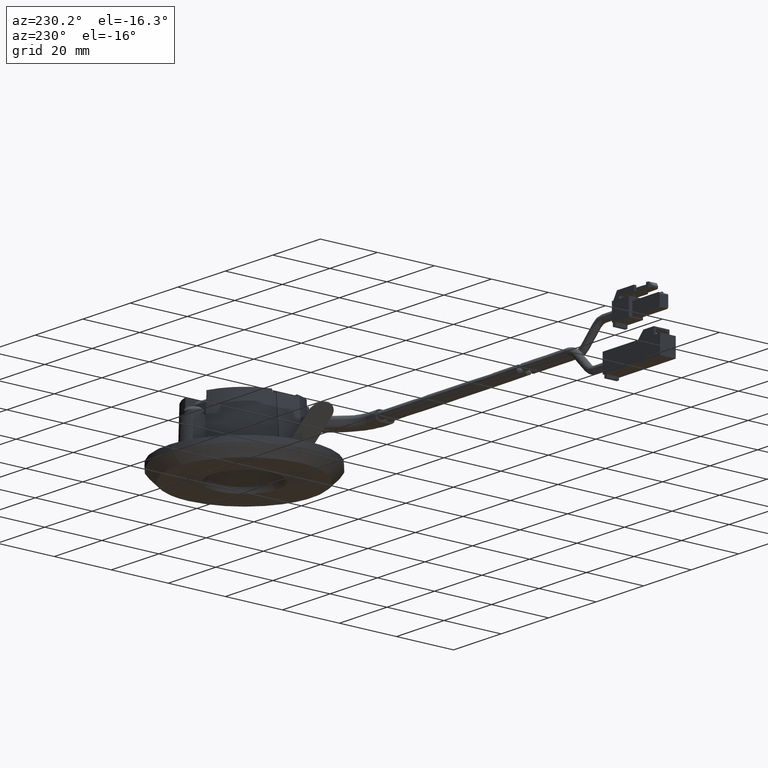
[diagram: clean part render]
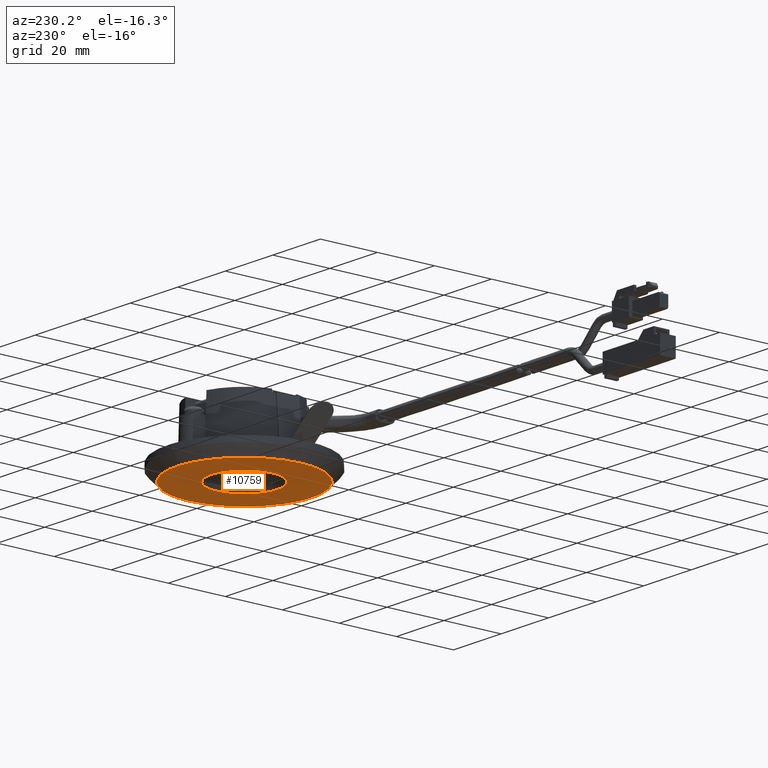
[diagram: same view with one face highlighted and labeled with its STEP entity id]
A machine part, auxiliary view. The second image highlights one B-rep face of the part: STEP entity #10759.
In plain terms, the highlighted face is a freeform B-spline surface patch.
Its self-contained STEP definition (entity closure, byte-faithful):
#10579=CARTESIAN_POINT('',(-0.702058204869649,11.478550181869860,-2.867680E-011));
#10580=VERTEX_POINT('',#10579);
#10586=CARTESIAN_POINT('',(11.500000000002890,0.0,0.0));
#10587=VERTEX_POINT('',#10586);
#10588=CARTESIAN_POINT('',(-0.702058204869649,11.478550181869862,-2.867680E-011));
#10589=CARTESIAN_POINT('',(-0.351356778044248,11.500000000031255,-2.826469E-011));
#10590=CARTESIAN_POINT('',(-1.546591E-012,11.500000000030809,-2.782662E-011));
#10591=CARTESIAN_POINT('',(11.500000000002062,11.500000000016341,-1.348822E-011));
#10592=CARTESIAN_POINT('',(11.500000000002890,0.0,0.0));
#10600=(BOUNDED_CURVE()B_SPLINE_CURVE(2,(#10588,#10589,#10590,#10591,#10592),.UNSPECIFIED.,.F.,.U.)B_SPLINE_CURVE_WITH_KNOTS((3,2,3),(0.239332962238706,0.250000000000000,0.500000000000000),.UNSPECIFIED.)CURVE()GEOMETRIC_REPRESENTATION_ITEM()RATIONAL_B_SPLINE_CURVE((0.976072041666210,0.987502787899560,1.0,0.707106781186548,1.0))REPRESENTATION_ITEM(''));
#10601=EDGE_CURVE('',#10580,#10587,#10600,.T.);
#10603=CARTESIAN_POINT('',(0.702058204869991,-11.478550181869860,-2.867702E-011));
#10604=VERTEX_POINT('',#10603);
#10605=CARTESIAN_POINT('',(11.500000000002890,0.0,0.0));
#10606=CARTESIAN_POINT('',(11.500000000003778,-10.818119769227604,-1.419286E-011));
#10607=CARTESIAN_POINT('',(0.702058204869991,-11.478550181869862,-2.867702E-011));
#10615=(BOUNDED_CURVE()B_SPLINE_CURVE(2,(#10605,#10606,#10607),.UNSPECIFIED.,.F.,.U.)B_SPLINE_CURVE_WITH_KNOTS((3,3),(0.500000000000000,0.739332962238706),.UNSPECIFIED.)CURVE()GEOMETRIC_REPRESENTATION_ITEM()RATIONAL_B_SPLINE_CURVE((1.0,0.719603993286988,0.976072041666210))REPRESENTATION_ITEM(''));
#10616=EDGE_CURVE('',#10587,#10604,#10615,.T.);
#10648=CARTESIAN_POINT('',(-11.500000000002551,0.0,3.298065E-013));
#10649=VERTEX_POINT('',#10648);
#10650=CARTESIAN_POINT('',(0.702058204869991,-11.478550181869862,-2.867702E-011));
#10651=CARTESIAN_POINT('',(0.351356778044591,-11.500000000031255,-2.825957E-011));
#10652=CARTESIAN_POINT('',(1.890776E-012,-11.500000000030809,-2.781646E-011));
#10653=CARTESIAN_POINT('',(-11.500000000001718,-11.500000000016341,-1.331336E-011));
#10654=CARTESIAN_POINT('',(-11.500000000002551,0.0,3.298065E-013));
#10662=(BOUNDED_CURVE()B_SPLINE_CURVE(2,(#10650,#10651,#10652,#10653,#10654),.UNSPECIFIED.,.F.,.U.)B_SPLINE_CURVE_WITH_KNOTS((3,2,3),(0.739332962238706,0.750000000000000,1.0),.UNSPECIFIED.)CURVE()GEOMETRIC_REPRESENTATION_ITEM()RATIONAL_B_SPLINE_CURVE((0.976072041666210,0.987502787899560,1.0,0.707106781186548,1.0))REPRESENTATION_ITEM(''));
#10663=EDGE_CURVE('',#10604,#10649,#10662,.T.);
#10665=CARTESIAN_POINT('',(-11.500000000002551,0.0,3.298065E-013));
#10666=CARTESIAN_POINT('',(-11.500000000003435,10.818119769227604,-1.417350E-011));
#10667=CARTESIAN_POINT('',(-0.702058204869649,11.478550181869862,-2.867680E-011));
#10675=(BOUNDED_CURVE()B_SPLINE_CURVE(2,(#10665,#10666,#10667),.UNSPECIFIED.,.F.,.U.)B_SPLINE_CURVE_WITH_KNOTS((3,3),(0.0,0.239332962238706),.UNSPECIFIED.)CURVE()GEOMETRIC_REPRESENTATION_ITEM()RATIONAL_B_SPLINE_CURVE((1.0,0.719603993286988,0.976072041666210))REPRESENTATION_ITEM(''));
#10676=EDGE_CURVE('',#10649,#10580,#10675,.T.);
#10682=CARTESIAN_POINT('',(-26.067629908131359,-26.060396084585339,3.922769E-013));
#10683=CARTESIAN_POINT('',(26.067631179498768,-26.060396084585339,3.922769E-013));
#10684=CARTESIAN_POINT('',(-26.067629908131359,26.060396932163389,3.922769E-013));
#10685=CARTESIAN_POINT('',(26.067631179498768,26.060396932163389,3.922769E-013));
#10686=B_SPLINE_SURFACE_WITH_KNOTS('',1,1,((#10682,#10684),(#10683,#10685)),.UNSPECIFIED.,.F.,.F.,.U.,(2,2),(2,2),(0.0,52.135261087630127),(0.0,52.120793016748742),.UNSPECIFIED.);
#10687=CARTESIAN_POINT('',(-23.700000000001580,0.0,4.547474E-013));
#10688=VERTEX_POINT('',#10687);
#10689=CARTESIAN_POINT('',(-1.859480568842503,23.626940809481599,1.243042E-011));
#10690=VERTEX_POINT('',#10689);
#10691=CARTESIAN_POINT('',(-23.700000000001580,0.0,4.547474E-013));
#10692=CARTESIAN_POINT('',(-23.700000000002046,21.908054652221818,6.442583E-012));
#10693=CARTESIAN_POINT('',(-1.859480568842504,23.626940809481599,1.243042E-011));
#10701=(BOUNDED_CURVE()B_SPLINE_CURVE(2,(#10691,#10692,#10693),.UNSPECIFIED.,.F.,.U.)B_SPLINE_CURVE_WITH_KNOTS((3,3),(0.0,0.236331300632102),.UNSPECIFIED.)CURVE()GEOMETRIC_REPRESENTATION_ITEM()RATIONAL_B_SPLINE_CURVE((1.0,0.723120658605976,0.969723356170427))REPRESENTATION_ITEM(''));
#10702=EDGE_CURVE('',#10688,#10690,#10701,.T.);
#10703=ORIENTED_EDGE('',*,*,#10702,.T.);
#10704=CARTESIAN_POINT('',(23.700000000001921,0.0,0.0));
#10705=VERTEX_POINT('',#10704);
#10706=CARTESIAN_POINT('',(-1.859480568842504,23.626940809481599,1.243042E-011));
#10707=CARTESIAN_POINT('',(-0.931175536128641,23.700000000013471,1.220469E-011));
#10708=CARTESIAN_POINT('',(-7.353469E-013,23.700000000013230,1.196049E-011));
#10709=CARTESIAN_POINT('',(23.700000000001474,23.700000000007257,5.745280E-012));
#10710=CARTESIAN_POINT('',(23.700000000001921,0.0,0.0));
#10718=(BOUNDED_CURVE()B_SPLINE_CURVE(2,(#10706,#10707,#10708,#10709,#10710),.UNSPECIFIED.,.F.,.U.)B_SPLINE_CURVE_WITH_KNOTS((3,2,3),(0.236331300632102,0.250000000000000,0.500000000000000),.UNSPECIFIED.)CURVE()GEOMETRIC_REPRESENTATION_ITEM()RATIONAL_B_SPLINE_CURVE((0.969723356170427,0.983986122580572,1.0,0.707106781186548,1.0))REPRESENTATION_ITEM(''));
#10719=EDGE_CURVE('',#10690,#10705,#10718,.T.);
#10720=ORIENTED_EDGE('',*,*,#10719,.T.);
#10721=CARTESIAN_POINT('',(1.859480568842842,-23.626940809481599,1.242972E-011));
#10722=VERTEX_POINT('',#10721);
#10723=CARTESIAN_POINT('',(23.700000000001921,0.0,0.0));
#10724=CARTESIAN_POINT('',(23.700000000002394,-21.908054652221836,6.408550E-012));
#10725=CARTESIAN_POINT('',(1.859480568842842,-23.626940809481596,1.242972E-011));
#10733=(BOUNDED_CURVE()B_SPLINE_CURVE(2,(#10723,#10724,#10725),.UNSPECIFIED.,.F.,.U.)B_SPLINE_CURVE_WITH_KNOTS((3,3),(0.500000000000000,0.736331300632102),.UNSPECIFIED.)CURVE()GEOMETRIC_REPRESENTATION_ITEM()RATIONAL_B_SPLINE_CURVE((1.0,0.723120658605976,0.969723356170427))REPRESENTATION_ITEM(''));
#10734=EDGE_CURVE('',#10705,#10722,#10733,.T.);
#10735=ORIENTED_EDGE('',*,*,#10734,.T.);
#10736=CARTESIAN_POINT('',(1.859480568842842,-23.626940809481596,1.242972E-011));
#10737=CARTESIAN_POINT('',(0.931175536128983,-23.700000000013468,1.221363E-011));
#10738=CARTESIAN_POINT('',(1.080894E-012,-23.700000000013230,1.197835E-011));
#10739=CARTESIAN_POINT('',(-23.700000000001136,-23.700000000007257,5.990169E-012));
#10740=CARTESIAN_POINT('',(-23.700000000001580,0.0,4.547474E-013));
#10748=(BOUNDED_CURVE()B_SPLINE_CURVE(2,(#10736,#10737,#10738,#10739,#10740),.UNSPECIFIED.,.F.,.U.)B_SPLINE_CURVE_WITH_KNOTS((3,2,3),(0.736331300632102,0.750000000000000,1.0),.UNSPECIFIED.)CURVE()GEOMETRIC_REPRESENTATION_ITEM()RATIONAL_B_SPLINE_CURVE((0.969723356170427,0.983986122580572,1.0,0.707106781186548,1.0))REPRESENTATION_ITEM(''));
#10749=EDGE_CURVE('',#10722,#10688,#10748,.T.);
#10750=ORIENTED_EDGE('',*,*,#10749,.T.);
#10751=EDGE_LOOP('',(#10703,#10720,#10735,#10750));
#10752=FACE_OUTER_BOUND('',#10751,.T.);
#10753=ORIENTED_EDGE('',*,*,#10616,.F.);
#10754=ORIENTED_EDGE('',*,*,#10601,.F.);
#10755=ORIENTED_EDGE('',*,*,#10676,.F.);
#10756=ORIENTED_EDGE('',*,*,#10663,.F.);
#10757=EDGE_LOOP('',(#10753,#10754,#10755,#10756));
#10758=FACE_BOUND('',#10757,.T.);
#10759=ADVANCED_FACE('',(#10752,#10758),#10686,.F.);